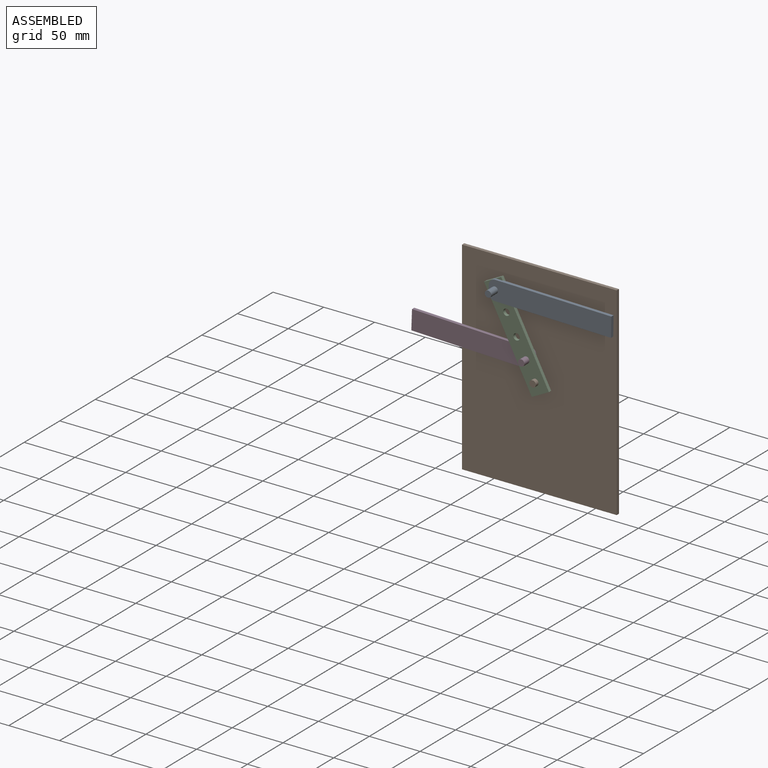
[diagram: assembled view]
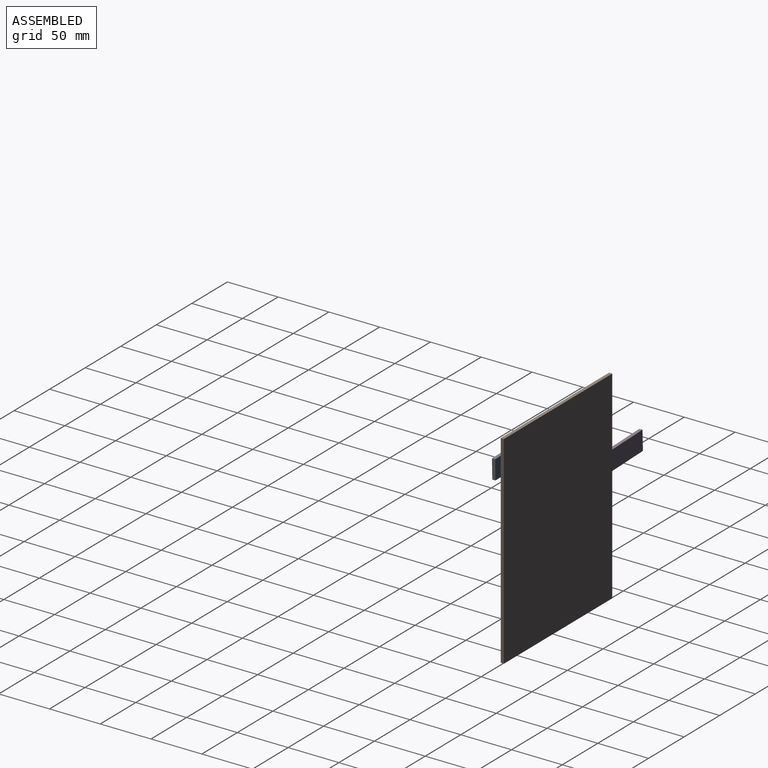
[diagram: assembled view, second angle]
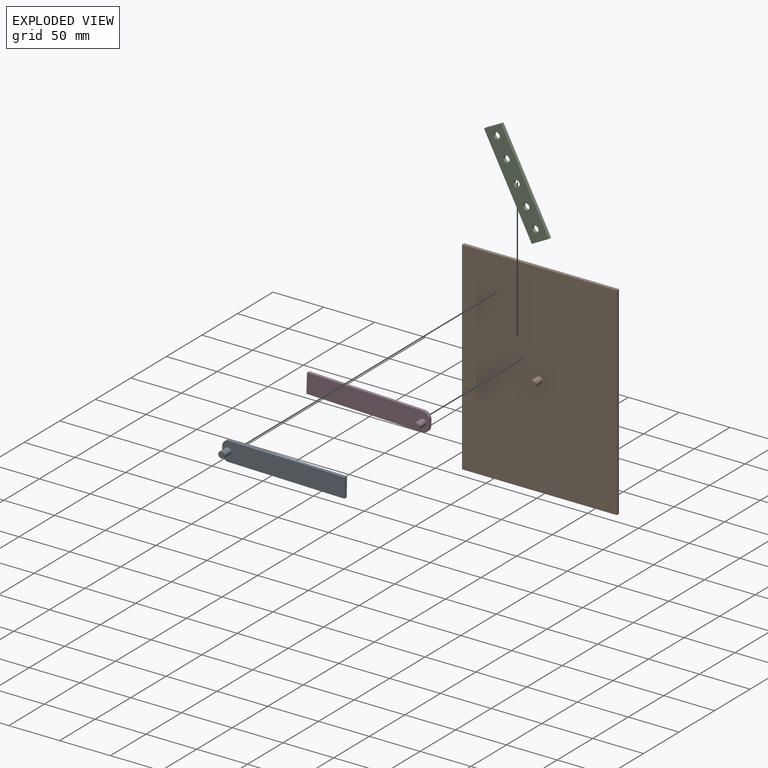
[diagram: exploded view]
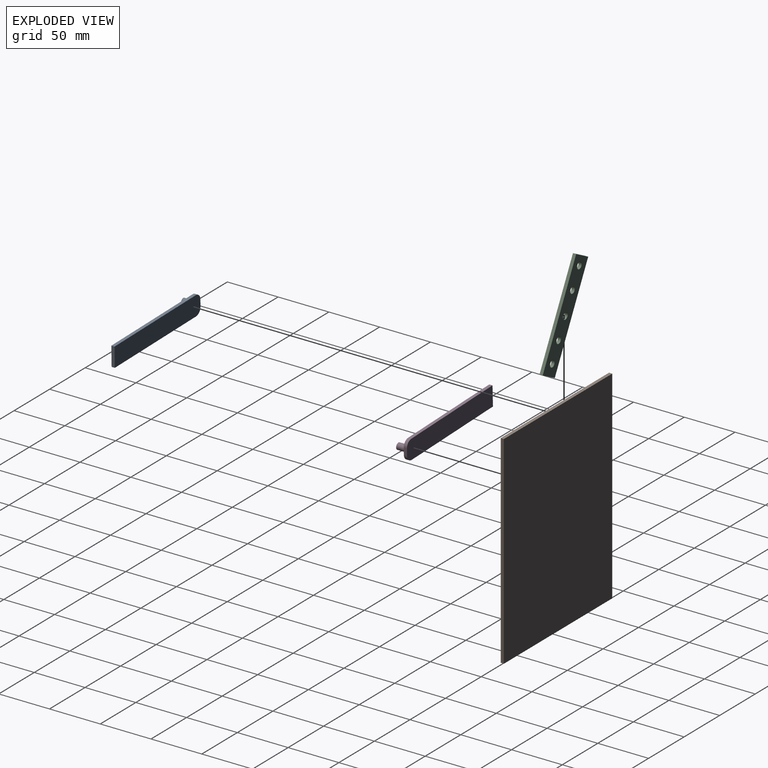
[diagram: exploded view, second angle]
ASSEMBLY  parts=4 mates=3
PART A: 10 faces, bbox 19.1x12.7x120.7 mm
  f0: cylinder r=3.17mm len=9.53mm, axis (0,1,0), area 190mm2, adj f1,f8
  f1: plane 6.35x6.35mm, normal (0,-1,0), area 31.7mm2, adj f0
  f2: plane 19.05x3.18mm, normal (0,0,1), area 60.5mm2, adj f3,f7,f8,f9
  f3: plane 114.3x3.18mm, normal (-1,0,0), area 362.9mm2, adj f2,f4,f8,f9
  f4: cylinder r=6.35mm len=6.35mm, axis (0,1,0), area 31.7mm2, adj f3,f5,f8,f9
  f5: plane 6.35x3.18mm, normal (0,0,-1), area 20.2mm2, adj f4,f6,f8,f9
  f6: cylinder r=6.35mm len=6.35mm, axis (0,1,0), area 31.7mm2, adj f5,f7,f8,f9
  f7: plane 114.3x3.18mm, normal (1,0,0), area 362.9mm2, adj f2,f6,f8,f9
  f8: plane 120.65x19.05mm, normal (0,-1,0), area 2249.4mm2, adj f0,f2,f3,f4,f5,f6,f7
  f9: plane 120.65x19.05mm, normal (0,1,0), area 2281.1mm2, adj f2,f3,f4,f5,f6,f7
PART B: 8 faces, bbox 152.4x12.7x200 mm
  f0: cylinder r=3.17mm len=9.53mm, axis (0,1,0), area 190mm2, adj f1,f6
  f1: plane 6.35x6.35mm, normal (0,-1,0), area 31.7mm2, adj f0
  f2: plane 152.4x3.18mm, normal (0,0,-1), area 483.9mm2, adj f3,f5,f6,f7
  f3: plane 200.03x3.18mm, normal (1,0,0), area 635.1mm2, adj f2,f4,f6,f7
  f4: plane 152.4x3.18mm, normal (0,0,1), area 483.9mm2, adj f3,f5,f6,f7
  f5: plane 200.03x3.18mm, normal (-1,0,0), area 635.1mm2, adj f2,f4,f6,f7
  f6: plane 200.03x152.4mm, normal (0,-1,0), area 30452.1mm2, adj f0,f2,f3,f4,f5
  f7: plane 200.03x152.4mm, normal (0,1,0), area 30483.8mm2, adj f2,f3,f4,f5
PART C: 11 faces, bbox 19.1x3.2x101.6 mm
  f0: plane 19.05x3.18mm, normal (0,0,1), area 60.5mm2, adj f1,f3,f4,f5
  f1: plane 101.6x3.18mm, normal (-1,0,0), area 322.6mm2, adj f0,f2,f4,f5
  f2: plane 19.05x3.18mm, normal (0,0,-1), area 60.5mm2, adj f1,f3,f4,f5
  f3: plane 101.6x3.18mm, normal (1,0,0), area 322.6mm2, adj f0,f2,f4,f5
  f4: plane 101.6x19.05mm, normal (0,-1,0), area 1777.1mm2, adj f0,f1,f2,f3,f6,f7,f8,f9
  f5: plane 101.6x19.05mm, normal (0,1,0), area 1777.1mm2, adj f0,f1,f2,f3,f6,f7,f8,f9
  f6: cylinder r=3.17mm len=6.35mm, axis (0,-1,0), area 63.3mm2, adj f4,f5
  f7: cylinder r=3.17mm len=6.35mm, axis (0,-1,0), area 63.3mm2, adj f4,f5
  f8: cylinder r=3.17mm len=6.35mm, axis (0,-1,0), area 63.3mm2, adj f4,f5
  f9: cylinder r=3.17mm len=6.35mm, axis (0,-1,0), area 63.3mm2, adj f4,f5
  f10: cylinder r=3.17mm len=6.35mm, axis (0,-1,0), area 63.3mm2, adj f4,f5
PART D: same geometry as A
PLACE A rot(axis=(0,1,0),91.1deg) t=(7.4,-2.13,65.79)mm
PLACE B t=(0.34,6.12,-0.64)mm fixed
PLACE C rot(axis=(0,-1,0),27.6deg) t=(-31.21,0.41,41.52)mm
PLACE D rot(axis=(0,-1,0),88.1deg) t=(-53.69,2.95,24.03)mm
MATE revolute C.f6 <-> B.f0  axis (0,1,0) through (0.34,0.41,-0.64)mm
MATE revolute A.f0 <-> C.f10  axis (0,-1,0) through (-37.76,-5.31,72.28)mm
MATE revolute D.f0 <-> C.f7  axis (0,1,0) through (-8.64,-0.23,16.84)mm
